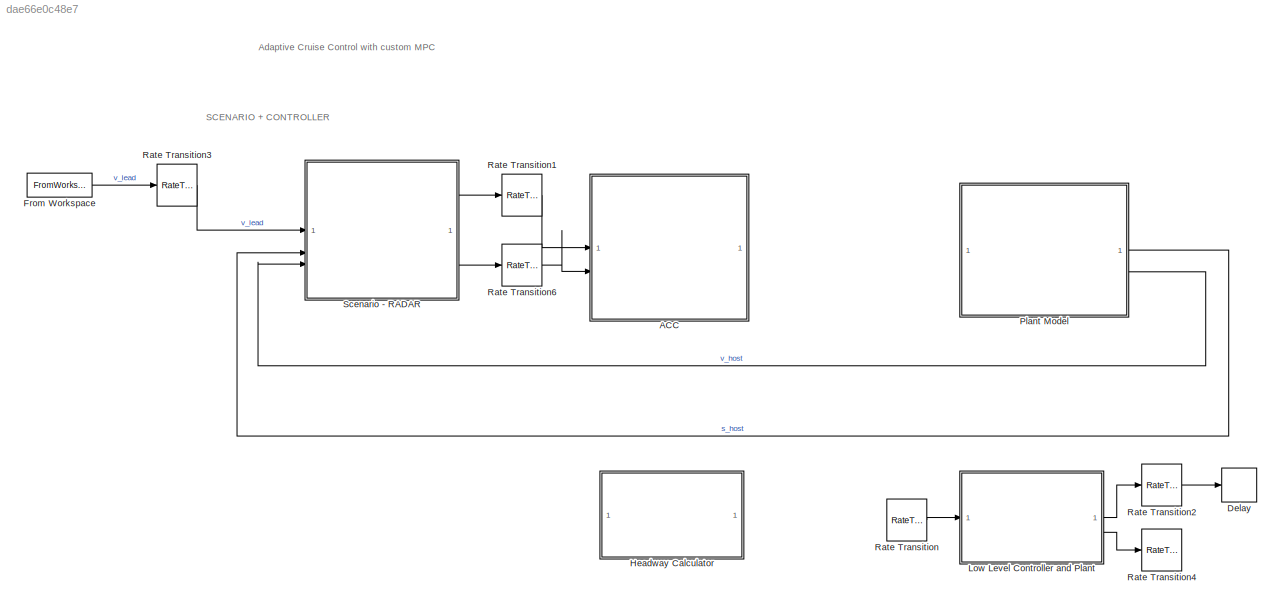
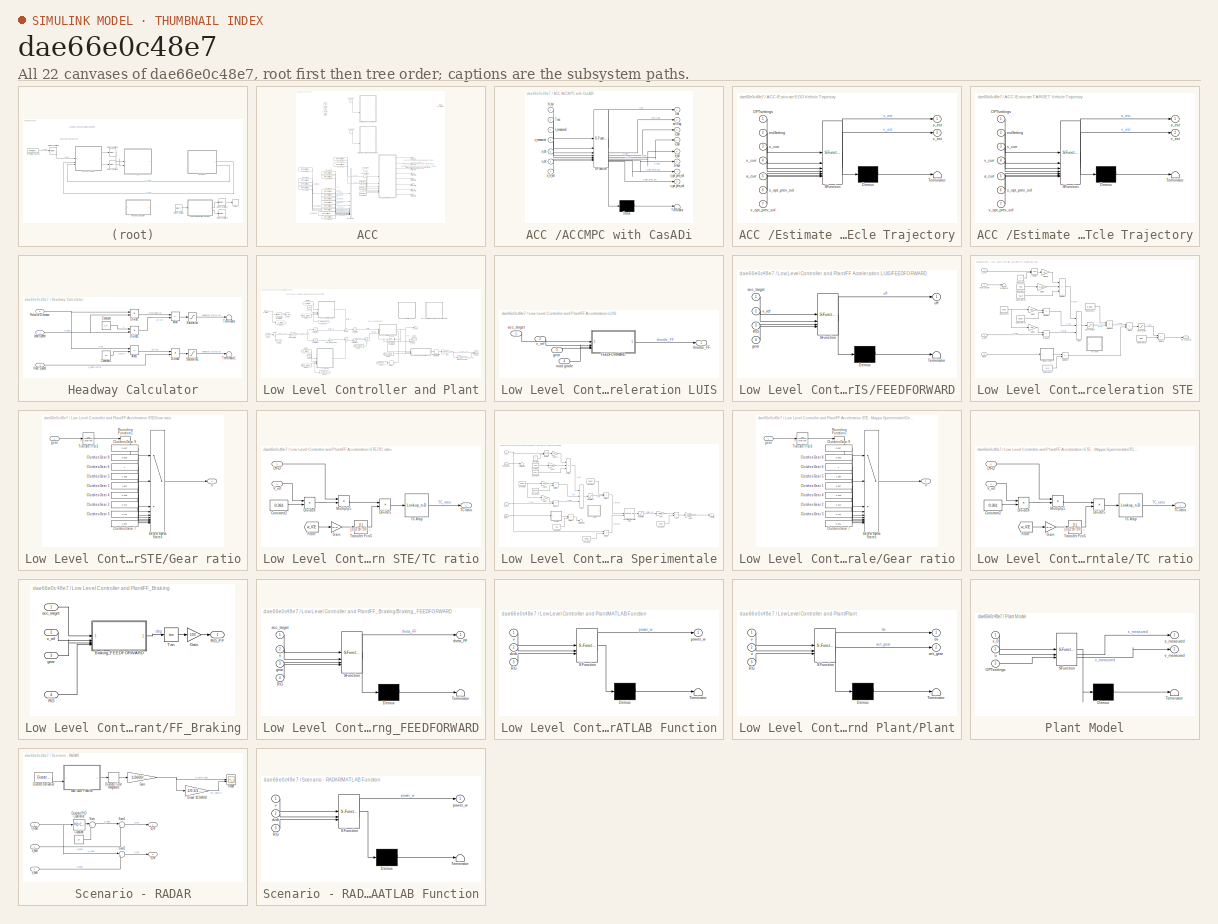
[diagram: thumbnail index - all 22 canvases of the model, root first then tree order]
MODEL slx_dae66e0c48e7
KIND model
CONFIG AbsTol = auto
CONFIG EnableMultiTasking = on
CONFIG FixedStep = 0.005
CONFIG InitFcn = load('DrivingCycles/WLTC.mat')\nload('DrivingCycles/Mappa_Throttle.mat')
CONFIG MaxStep = 0.005
CONFIG MinStep = auto
CONFIG RelTol = 1e-3
CONFIG SampleTimeConstraint = Unconstrained
CONFIG SolverName = FixedStepDiscrete
CONFIG StartTime = 0.0
CONFIG StopTime = 1800
WORKSPACE source: external: MATLAB File  (data not in archive)
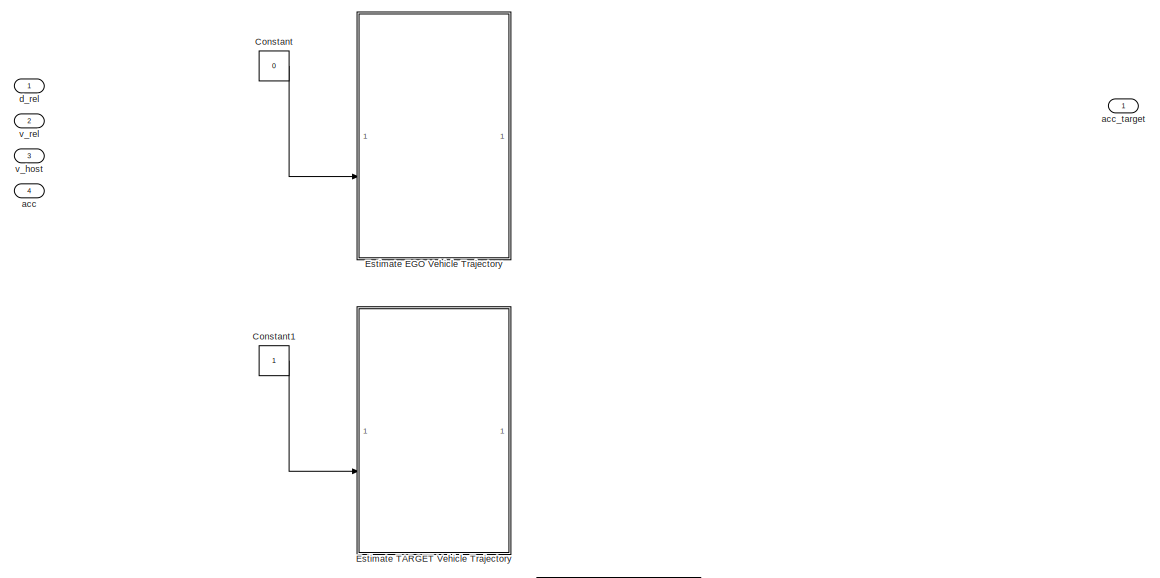
[diagram: ACC  - part 1/2, full width, top band]
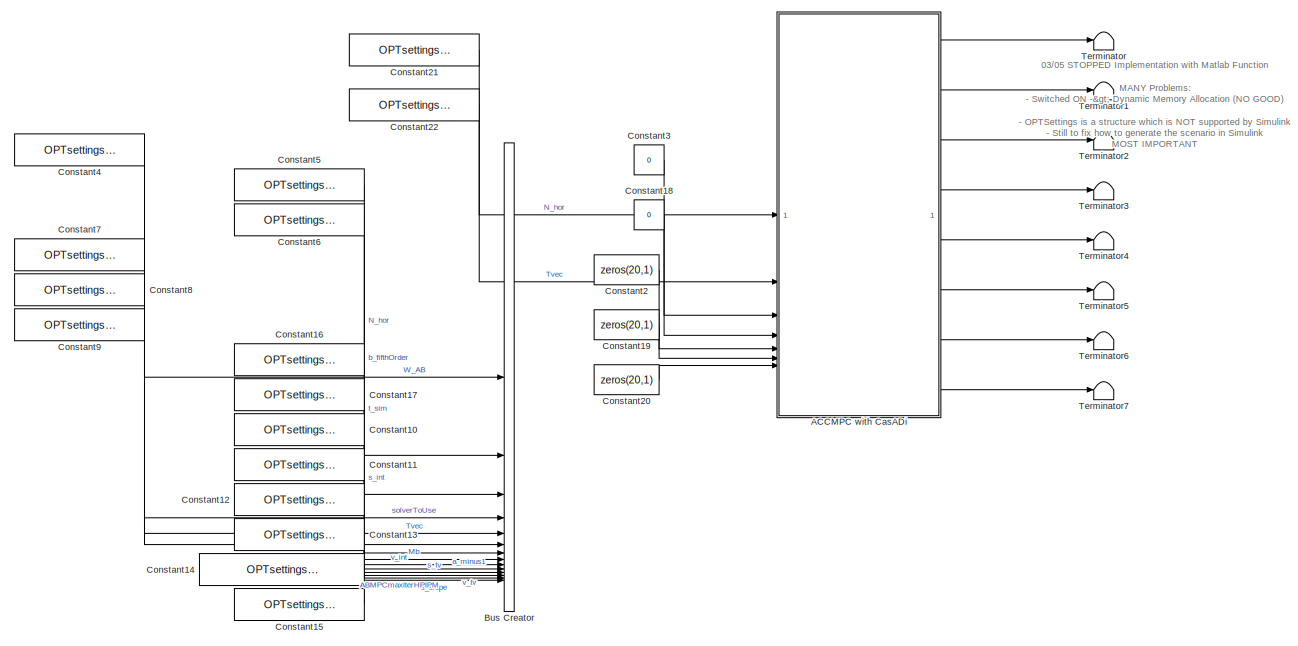
[diagram: ACC  - part 2/2, full width, bottom band]
BLOCK [SubSystem] ACC 
  Commented = on
BLOCK [SubSystem] ACC /ACCMPC with CasADi
  ErrorFcn = Stateflow.Translate.translate
  PermitHierarchicalResolution = ExplicitOnly
  SFBlockType = MATLAB Function
  TreatAsAtomicUnit = on
BLOCK [Demux] ACC /ACCMPC with CasADi/ Demux 
  Outputs = 1
BLOCK [S-Function] ACC /ACCMPC with CasADi/ SFunction 
  EnableBusSupport = on
  FunctionName = sf_sfun
  Parameters = OPTsettings,V
  PortCounts = [7 9]
  SFcnIsStateOwnerBlock = off
  SFunctionDeploymentMode = off
  Tag = Stateflow S-Function 10
BLOCK [Terminator] ACC /ACCMPC with CasADi/ Terminator 
BLOCK [Inport] ACC /ACCMPC with CasADi/N_hor
BLOCK [Outport] ACC /ACCMPC with CasADi/Slack
  Port = 6
BLOCK [Inport] ACC /ACCMPC with CasADi/Tvec
  Port = 2
BLOCK [Outport] ACC /ACCMPC with CasADi/a_opt
  Port = 5
BLOCK [Outport] ACC /ACCMPC with CasADi/exitflag
  Port = 2
BLOCK [Outport] ACC /ACCMPC with CasADi/fval
BLOCK [Inport] ACC /ACCMPC with CasADi/s_est
  Port = 5
BLOCK [Inport] ACC /ACCMPC with CasADi/s_measured
  Port = 3
BLOCK [Outport] ACC /ACCMPC with CasADi/s_opt
  Port = 3
BLOCK [Outport] ACC /ACCMPC with CasADi/s_opt_prev_sol
  Port = 7
BLOCK [Inport] ACC /ACCMPC with CasADi/s_tv_est
  Port = 7
BLOCK [Inport] ACC /ACCMPC with CasADi/v_est
  Port = 6
BLOCK [Inport] ACC /ACCMPC with CasADi/v_measured
  Port = 4
BLOCK [Outport] ACC /ACCMPC with CasADi/v_opt
  Port = 4
BLOCK [Outport] ACC /ACCMPC with CasADi/v_opt_prev_sol
  Port = 8
BLOCK [BusCreator] ACC /Bus Creator
  Commented = on
  DisplayOption = bar
  InheritFromInputs = on
  Inputs = 14
BLOCK [Constant] ACC /Constant
  Value = 0
BLOCK [Constant] ACC /Constant1
BLOCK [Constant] ACC /Constant10
  Commented = on
  Value = OPTsettings.v_init
BLOCK [Constant] ACC /Constant11
  Commented = on
  Value = OPTsettings.a_minus1
BLOCK [Constant] ACC /Constant12
  Commented = on
  OutDataTypeStr = double
  Value = OPTsettings.s_tv
  VectorParams1D = off
BLOCK [Constant] ACC /Constant13
  Commented = on
  Value = OPTsettings.v_tv
  VectorParams1D = off
BLOCK [Constant] ACC /Constant14
  Commented = on
  Value = OPTsettings.ABMPCmaxIterHPIPM
BLOCK [Constant] ACC /Constant15
  Commented = on
  Value = OPTsettings.s_slope
  VectorParams1D = off
BLOCK [Constant] ACC /Constant16
  Commented = on
  Value = OPTsettings.t_sim
BLOCK [Constant] ACC /Constant17
  Commented = on
  Value = OPTsettings.s_init
BLOCK [Constant] ACC /Constant18
  Value = 0
BLOCK [Constant] ACC /Constant19
  Value = zeros(20,1)
BLOCK [Constant] ACC /Constant2
  Value = zeros(20,1)
BLOCK [Constant] ACC /Constant20
  Value = zeros(20,1)
BLOCK [Constant] ACC /Constant21
  Value = OPTsettings.N_hor
BLOCK [Constant] ACC /Constant22
  Value = OPTsettings.Tvec
  VectorParams1D = off
BLOCK [Constant] ACC /Constant3
  Value = 0
BLOCK [Constant] ACC /Constant4
  Commented = on
  Value = OPTsettings.W_AB
  VectorParams1D = off
BLOCK [Constant] ACC /Constant5
  Commented = on
  Value = OPTsettings.N_hor
BLOCK [Constant] ACC /Constant6
  Commented = on
  Value = OPTsettings.b_fifthOrder
  VectorParams1D = off
BLOCK [Constant] ACC /Constant7
  Commented = on
  Value = OPTsettings.solverToUse
BLOCK [Constant] ACC /Constant8
  Commented = on
  Value = OPTsettings.Tvec
  VectorParams1D = off
BLOCK [Constant] ACC /Constant9
  Commented = on
  Value = OPTsettings.Mb
  VectorParams1D = off
BLOCK [SubSystem] ACC /Estimate EGO Vehicle Trajectory
  ErrorFcn = Stateflow.Translate.translate
  PermitHierarchicalResolution = ExplicitOnly
  SFBlockType = MATLAB Function
  TreatAsAtomicUnit = on
BLOCK [Demux] ACC /Estimate EGO Vehicle Trajectory/ Demux 
  Outputs = 1
BLOCK [S-Function] ACC /Estimate EGO Vehicle Trajectory/ SFunction 
  EnableBusSupport = off
  FunctionName = sf_sfun
  PortCounts = [7 3]
  SFcnIsStateOwnerBlock = off
  SFunctionDeploymentMode = off
  Tag = Stateflow S-Function 8
BLOCK [Terminator] ACC /Estimate EGO Vehicle Trajectory/ Terminator 
BLOCK [Inport] ACC /Estimate EGO Vehicle Trajectory/OPTsettings
BLOCK [Inport] ACC /Estimate EGO Vehicle Trajectory/a_curr
  Port = 5
BLOCK [Inport] ACC /Estimate EGO Vehicle Trajectory/estSetting
  Port = 2
BLOCK [Inport] ACC /Estimate EGO Vehicle Trajectory/s_curr
  Port = 3
BLOCK [Outport] ACC /Estimate EGO Vehicle Trajectory/s_est
BLOCK [Inport] ACC /Estimate EGO Vehicle Trajectory/s_opt_prev_sol
  Port = 6
BLOCK [Inport] ACC /Estimate EGO Vehicle Trajectory/v_curr
  Port = 4
BLOCK [Outport] ACC /Estimate EGO Vehicle Trajectory/v_est
  Port = 2
BLOCK [Inport] ACC /Estimate EGO Vehicle Trajectory/v_opt_prev_sol
  Port = 7
BLOCK [SubSystem] ACC /Estimate TARGET Vehicle Trajectory
  ErrorFcn = Stateflow.Translate.translate
  PermitHierarchicalResolution = ExplicitOnly
  SFBlockType = MATLAB Function
  TreatAsAtomicUnit = on
BLOCK [Demux] ACC /Estimate TARGET Vehicle Trajectory/ Demux 
  Outputs = 1
BLOCK [S-Function] ACC /Estimate TARGET Vehicle Trajectory/ SFunction 
  EnableBusSupport = off
  FunctionName = sf_sfun
  PortCounts = [7 3]
  SFcnIsStateOwnerBlock = off
  SFunctionDeploymentMode = off
  Tag = Stateflow S-Function 9
BLOCK [Terminator] ACC /Estimate TARGET Vehicle Trajectory/ Terminator 
BLOCK [Inport] ACC /Estimate TARGET Vehicle Trajectory/OPTsettings
BLOCK [Inport] ACC /Estimate TARGET Vehicle Trajectory/a_curr
  Port = 5
BLOCK [Inport] ACC /Estimate TARGET Vehicle Trajectory/estSetting
  Port = 2
BLOCK [Inport] ACC /Estimate TARGET Vehicle Trajectory/s_curr
  Port = 3
BLOCK [Outport] ACC /Estimate TARGET Vehicle Trajectory/s_est
BLOCK [Inport] ACC /Estimate TARGET Vehicle Trajectory/s_opt_prev_sol
  Port = 6
BLOCK [Inport] ACC /Estimate TARGET Vehicle Trajectory/v_curr
  Port = 4
BLOCK [Outport] ACC /Estimate TARGET Vehicle Trajectory/v_est
  Port = 2
BLOCK [Inport] ACC /Estimate TARGET Vehicle Trajectory/v_opt_prev_sol
  Port = 7
BLOCK [Terminator] ACC /Terminator
BLOCK [Terminator] ACC /Terminator1
BLOCK [Terminator] ACC /Terminator2
BLOCK [Terminator] ACC /Terminator3
BLOCK [Terminator] ACC /Terminator4
BLOCK [Terminator] ACC /Terminator5
BLOCK [Terminator] ACC /Terminator6
BLOCK [Terminator] ACC /Terminator7
BLOCK [Inport] ACC /acc
  Port = 4
BLOCK [Outport] ACC /acc_target 
BLOCK [Inport] ACC /d_rel
BLOCK [Inport] ACC /v_host
  Port = 3
BLOCK [Inport] ACC /v_rel
  Port = 2
BLOCK [Delay] Delay
  Commented = on
  DelayLength = 1
  InputPortMap = u0
BLOCK [FromWorkspace] From Workspace
  Commented = on
  OutDataTypeStr = double
  SampleTime = 1
  VariableName = [T_z, V_z]
BLOCK [SubSystem] Headway Calculator
  Commented = on
BLOCK [Sum] Headway Calculator/Add
  IconShape = rectangular
  Inputs = +-
BLOCK [Sum] Headway Calculator/Add1
  IconShape = rectangular
  Inputs = +-
BLOCK [Constant] Headway Calculator/Constant
  Value = 2.5
BLOCK [Constant] Headway Calculator/Constant1
  Value = 10
BLOCK [Product] Headway Calculator/Divide
  Inputs = */
BLOCK [Product] Headway Calculator/Divide1
  Inputs = */
BLOCK [Product] Headway Calculator/Divide2
  Inputs = */
BLOCK [Inport] Headway Calculator/Host Speed
  Port = 2
BLOCK [Inport] Headway Calculator/Lead Speed
BLOCK [Inport] Headway Calculator/Relative Distance
  Port = 3
BLOCK [Saturate] Headway Calculator/Saturation
  LowerLimit = 0
  UpperLimit = 40
BLOCK [Saturate] Headway Calculator/Saturation1
  LowerLimit = 0
  UpperLimit = 40
BLOCK [Terminator] Headway Calculator/Terminator
BLOCK [Terminator] Headway Calculator/Terminator1
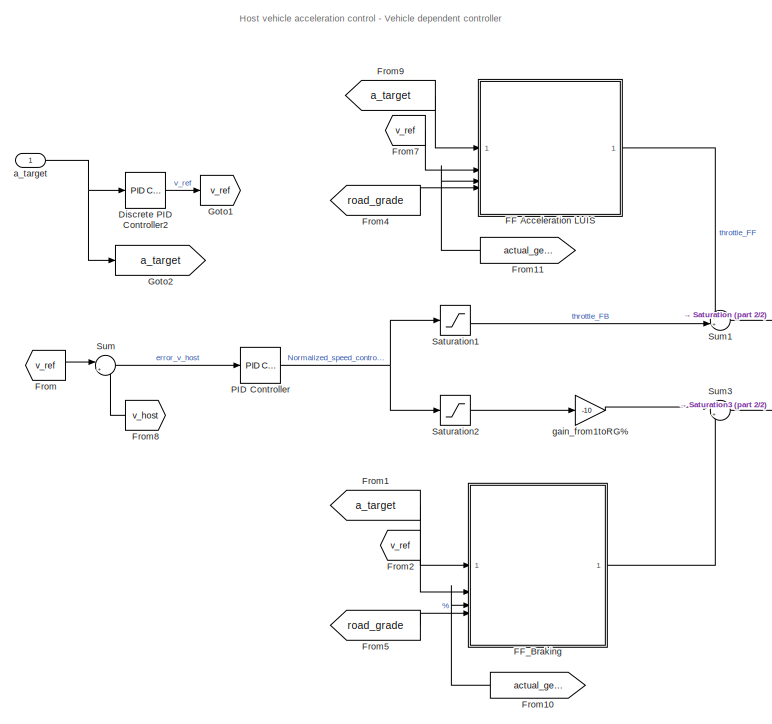
[diagram: Low Level Controller and Plant - part 1/2, left side, full height]
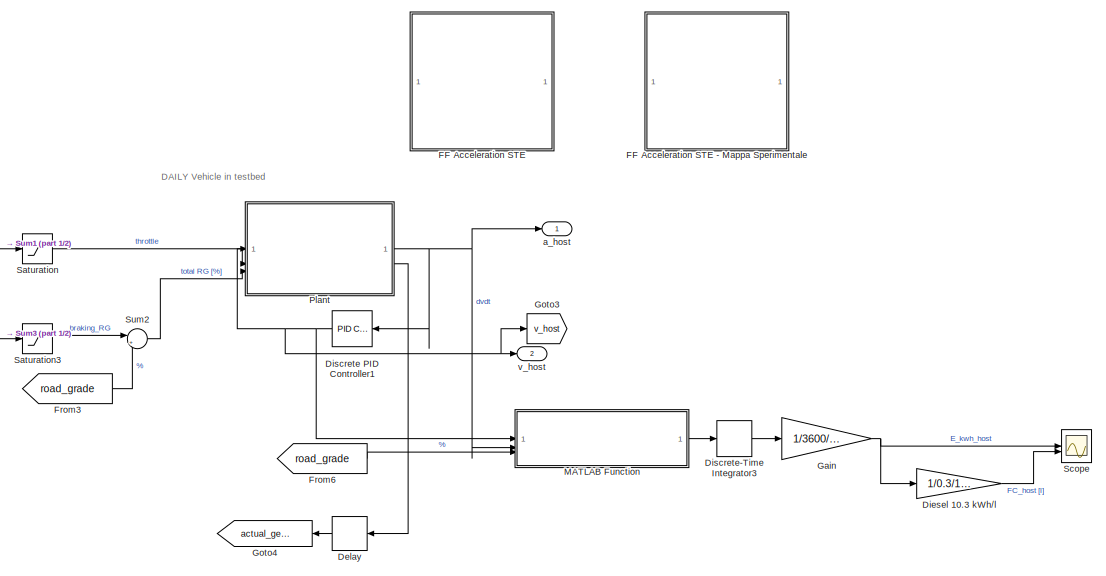
[diagram: Low Level Controller and Plant - part 2/2, right side, full height]
BLOCK [SubSystem] Low Level Controller and Plant
  Commented = on
BLOCK [Delay] Low Level Controller and Plant/Delay
  DelayLength = 1
  InitialCondition = 1
  InputPortMap = u0
  NameLocation = top
BLOCK [Gain] Low Level Controller and Plant/Diesel 10.3 kWh//l
  Gain = 1/0.3/10.3
BLOCK [Reference] Low Level Controller and Plant/Discrete PID Controller1  REF=slpidlib/PID Controller
  NameLocation = top
  SourceBlock = slpidlib/PID Controller
  SourceType = PID 1dof
BLOCK [Reference] Low Level Controller and Plant/Discrete PID Controller2  REF=slpidlib/PID Controller
  SourceBlock = slpidlib/PID Controller
  SourceType = PID 1dof
BLOCK [DiscreteIntegrator] Low Level Controller and Plant/Discrete-Time Integrator3
  ICPrevOutput = DiscIntNeverNeededParam
  ICPrevScaledInput = DiscIntNeverNeededParam
  InitialConditionSetting = Auto
  SampleTime = -1
BLOCK [SubSystem] Low Level Controller and Plant/FF Acceleration LUIS
BLOCK [SubSystem] Low Level Controller and Plant/FF Acceleration LUIS/FEEDFORWARD
  ErrorFcn = Stateflow.Translate.translate
  PermitHierarchicalResolution = ExplicitOnly
  SFBlockType = MATLAB Function
  TreatAsAtomicUnit = on
BLOCK [Demux] Low Level Controller and Plant/FF Acceleration LUIS/FEEDFORWARD/ Demux 
  Outputs = 1
BLOCK [S-Function] Low Level Controller and Plant/FF Acceleration LUIS/FEEDFORWARD/ SFunction 
  EnableBusSupport = off
  FunctionName = sf_sfun
  PortCounts = [4 2]
  SFcnIsStateOwnerBlock = off
  SFunctionDeploymentMode = off
  Tag = Stateflow S-Function 3
BLOCK [Terminator] Low Level Controller and Plant/FF Acceleration LUIS/FEEDFORWARD/ Terminator 
BLOCK [Inport] Low Level Controller and Plant/FF Acceleration LUIS/FEEDFORWARD/RG
  Port = 3
BLOCK [Inport] Low Level Controller and Plant/FF Acceleration LUIS/FEEDFORWARD/acc_target
BLOCK [Inport] Low Level Controller and Plant/FF Acceleration LUIS/FEEDFORWARD/gear
  Port = 4
BLOCK [Outport] Low Level Controller and Plant/FF Acceleration LUIS/FEEDFORWARD/uff
BLOCK [Inport] Low Level Controller and Plant/FF Acceleration LUIS/FEEDFORWARD/v_ref
  Port = 2
BLOCK [Inport] Low Level Controller and Plant/FF Acceleration LUIS/acc_target
BLOCK [Inport] Low Level Controller and Plant/FF Acceleration LUIS/gear
  NameLocation = top
  Port = 3
BLOCK [Inport] Low Level Controller and Plant/FF Acceleration LUIS/road grade
  NameLocation = top
  Port = 4
BLOCK [Outport] Low Level Controller and Plant/FF Acceleration LUIS/throttle_FF
BLOCK [Inport] Low Level Controller and Plant/FF Acceleration LUIS/v_ref
  Port = 2
BLOCK [SubSystem] Low Level Controller and Plant/FF Acceleration STE
  Commented = on
BLOCK [SubSystem] Low Level Controller and Plant/FF Acceleration STE - Mappa Sperimentale
  Commented = on
BLOCK [Sum] Low Level Controller and Plant/FF Acceleration STE - Mappa Sperimentale/Add
  IconShape = rectangular
  Inputs = +-
BLOCK [Sum] Low Level Controller and Plant/FF Acceleration STE - Mappa Sperimentale/Add2
  IconShape = rectangular
  Inputs = +++
BLOCK [Constant] Low Level Controller and Plant/FF Acceleration STE - Mappa Sperimentale/Constant1
  Value = 0.361
BLOCK [Constant] Low Level Controller and Plant/FF Acceleration STE - Mappa Sperimentale/Constant10
  Value = 0.0107
BLOCK [Constant] Low Level Controller and Plant/FF Acceleration STE - Mappa Sperimentale/Constant11
  Value = 0.46
BLOCK [Constant] Low Level Controller and Plant/FF Acceleration STE - Mappa Sperimentale/Constant12
  Value = 4.614
BLOCK [Constant] Low Level Controller and Plant/FF Acceleration STE - Mappa Sperimentale/Constant2
  Value = 0.361
BLOCK [Constant] Low Level Controller and Plant/FF Acceleration STE - Mappa Sperimentale/Constant3
  Value = 3.6
BLOCK [Constant] Low Level Controller and Plant/FF Acceleration STE - Mappa Sperimentale/Constant4
  Value = 0.18
BLOCK [Constant] Low Level Controller and Plant/FF Acceleration STE - Mappa Sperimentale/Constant7
  Value = 2
BLOCK [Constant] Low Level Controller and Plant/FF Acceleration STE - Mappa Sperimentale/Constant9
  Value = 3283
BLOCK [Product] Low Level Controller and Plant/FF Acceleration STE - Mappa Sperimentale/Divide
  Inputs = */
BLOCK [Lookup_n-D] Low Level Controller and Plant/FF Acceleration STE - Mappa Sperimentale/Experimental Throttle Map
  BreakpointsForDimension1 = wheel_torque_Nm
  BreakpointsForDimension2 = wheel_speed_radps
  InputPortMap = u0,u1
  InternalRulePriority = Speed
  RndMeth = Simplest
  Table = throttle_pedal
BLOCK [Outport] Low Level Controller and Plant/FF Acceleration STE - Mappa Sperimentale/FF throttle
BLOCK [Gain] Low Level Controller and Plant/FF Acceleration STE - Mappa Sperimentale/Gain
  Gain = 1/100
BLOCK [Gain] Low Level Controller and Plant/FF Acceleration STE - Mappa Sperimentale/Gain1
BLOCK [Gain] Low Level Controller and Plant/FF Acceleration STE - Mappa Sperimentale/Gain16
  Gain = 1/2
BLOCK [Gain] Low Level Controller and Plant/FF Acceleration STE - Mappa Sperimentale/Gain2
  Gain = 9.81
BLOCK [Gain] Low Level Controller and Plant/FF Acceleration STE - Mappa Sperimentale/Gain3
  Gain = 1.225
BLOCK [Gain] Low Level Controller and Plant/FF Acceleration STE - Mappa Sperimentale/Gain4
  Gain = 100/82
BLOCK [SubSystem] Low Level Controller and Plant/FF Acceleration STE - Mappa Sperimentale/Gear ratio
BLOCK [Constant] Low Level Controller and Plant/FF Acceleration STE - Mappa Sperimentale/Gear ratio/Clutches Gear 1
  SampleTime = 0
  Value = 1.667
BLOCK [Constant] Low Level Controller and Plant/FF Acceleration STE - Mappa Sperimentale/Gear ratio/Clutches Gear 2
  SampleTime = 0
  Value = 3.314
BLOCK [Constant] Low Level Controller and Plant/FF Acceleration STE - Mappa Sperimentale/Gear ratio/Clutches Gear 3
  SampleTime = 0
  Value = 4.714
BLOCK [Constant] Low Level Controller and Plant/FF Acceleration STE - Mappa Sperimentale/Gear ratio/Clutches Gear 4
  SampleTime = 0
  Value = 2.106
BLOCK [Constant] Low Level Controller and Plant/FF Acceleration STE - Mappa Sperimentale/Gear ratio/Clutches Gear 5
  SampleTime = 0
  Value = 1.285
BLOCK [Constant] Low Level Controller and Plant/FF Acceleration STE - Mappa Sperimentale/Gear ratio/Clutches Gear 6
  SampleTime = 0
BLOCK [Constant] Low Level Controller and Plant/FF Acceleration STE - Mappa Sperimentale/Gear ratio/Clutches Gear 7
  SampleTime = 0
  Value = 0.001
BLOCK [Constant] Low Level Controller and Plant/FF Acceleration STE - Mappa Sperimentale/Gear ratio/Clutches Gear 8
  SampleTime = 0
  Value = 0.839
BLOCK [Constant] Low Level Controller and Plant/FF Acceleration STE - Mappa Sperimentale/Gear ratio/Clutches Gear 9
  SampleTime = 0
  Value = 0.667
BLOCK [Rounding] Low Level Controller and Plant/FF Acceleration STE - Mappa Sperimentale/Gear ratio/Rounding Function1
  Operator = round
BLOCK [MultiPortSwitch] Low Level Controller and Plant/FF Acceleration STE - Mappa Sperimentale/Gear ratio/Select Synch States
  DataPortIndices = {8,7,6,5,4,3,2,1,0}
  DataPortOrder = Specify indices
  DiagnosticForDefault = None
  InputSameDT = off
  SaturateOnIntegerOverflow = off
BLOCK [TransferFcn] Low Level Controller and Plant/FF Acceleration STE - Mappa Sperimentale/Gear ratio/Transfer Fcn3
  Denominator = [1/(2*pi*20) 1]
BLOCK [Outport] Low Level Controller and Plant/FF Acceleration STE - Mappa Sperimentale/Gear ratio/U
  VectorParamsAs1DForOutWhenUnconnected = off
BLOCK [Inport] Low Level Controller and Plant/FF Acceleration STE - Mappa Sperimentale/Gear ratio/gear
BLOCK [Product] Low Level Controller and Plant/FF Acceleration STE - Mappa Sperimentale/Multiply1
  Inputs = 3
BLOCK [Product] Low Level Controller and Plant/FF Acceleration STE - Mappa Sperimentale/Multiply2
BLOCK [Product] Low Level Controller and Plant/FF Acceleration STE - Mappa Sperimentale/Multiply4
BLOCK [Product] Low Level Controller and Plant/FF Acceleration STE - Mappa Sperimentale/Multiply7
BLOCK [Math] Low Level Controller and Plant/FF Acceleration STE - Mappa Sperimentale/Power
  Operator = pow
BLOCK [Product] Low Level Controller and Plant/FF Acceleration STE - Mappa Sperimentale/Product
BLOCK [Saturate] Low Level Controller and Plant/FF Acceleration STE - Mappa Sperimentale/Saturation
  LowerLimit = 0
  UpperLimit = 100
BLOCK [Saturate] Low Level Controller and Plant/FF Acceleration STE - Mappa Sperimentale/Saturation1
  LowerLimit = 0
  UpperLimit = inf
BLOCK [SubSystem] Low Level Controller and Plant/FF Acceleration STE - Mappa Sperimentale/TC ratio
  Commented = on
BLOCK [Constant] Low Level Controller and Plant/FF Acceleration STE - Mappa Sperimentale/TC ratio/Constant2
  Value = 0.361
BLOCK [Product] Low Level Controller and Plant/FF Acceleration STE - Mappa Sperimentale/TC ratio/Divide4
  Inputs = */
BLOCK [Product] Low Level Controller and Plant/FF Acceleration STE - Mappa Sperimentale/TC ratio/Divide5
  Inputs = */
BLOCK [From] Low Level Controller and Plant/FF Acceleration STE - Mappa Sperimentale/TC ratio/From
  GotoTag = w_ICE
  TagVisibility = global
BLOCK [Gain] Low Level Controller and Plant/FF Acceleration STE - Mappa Sperimentale/TC ratio/Gain
  Gain = pi/30
BLOCK [Product] Low Level Controller and Plant/FF Acceleration STE - Mappa Sperimentale/TC ratio/Multiply5
BLOCK [Lookup_n-D] Low Level Controller and Plant/FF Acceleration STE - Mappa Sperimentale/TC ratio/TC Map
  BreakpointsForDimension1 = [0 0.50 0.60 0.70 0.80 0.87 0.92 0.94 0.96 0.97]
  InputPortMap = u0
  InternalRulePriority = Speed
  NumberOfTableDimensions = 1
  RndMeth = Simplest
  Table = [1.911 1.413 1.303 1.201 1.109 1.053 1.018 1.006 0.994 0.989]
BLOCK [Outport] Low Level Controller and Plant/FF Acceleration STE - Mappa Sperimentale/TC ratio/TC ratio
BLOCK [TransferFcn] Low Level Controller and Plant/FF Acceleration STE - Mappa Sperimentale/TC ratio/Transfer Fcn5
  Denominator = [1/(2*pi*20) 1]
BLOCK [Inport] Low Level Controller and Plant/FF Acceleration STE - Mappa Sperimentale/TC ratio/U*FD
  Port = 2
BLOCK [Inport] Low Level Controller and Plant/FF Acceleration STE - Mappa Sperimentale/TC ratio/V_ref
BLOCK [Terminator] Low Level Controller and Plant/FF Acceleration STE - Mappa Sperimentale/Terminator
BLOCK [Terminator] Low Level Controller and Plant/FF Acceleration STE - Mappa Sperimentale/Terminator1
BLOCK [Inport] Low Level Controller and Plant/FF Acceleration STE - Mappa Sperimentale/V_ref
  Port = 2
BLOCK [Inport] Low Level Controller and Plant/FF Acceleration STE - Mappa Sperimentale/a_des
BLOCK [Inport] Low Level Controller and Plant/FF Acceleration STE - Mappa Sperimentale/gear
  Port = 3
BLOCK [Inport] Low Level Controller and Plant/FF Acceleration STE - Mappa Sperimentale/road grade
  Port = 4
BLOCK [Sum] Low Level Controller and Plant/FF Acceleration STE/Add2
  IconShape = rectangular
  Inputs = +++
BLOCK [Constant] Low Level Controller and Plant/FF Acceleration STE/Constant1
  Value = 0.361
BLOCK [Constant] Low Level Controller and Plant/FF Acceleration STE/Constant10
  Value = 0.0107
BLOCK [Constant] Low Level Controller and Plant/FF Acceleration STE/Constant11
  Value = 0.46
BLOCK [Constant] Low Level Controller and Plant/FF Acceleration STE/Constant12
  Value = 4.614
BLOCK [Constant] Low Level Controller and Plant/FF Acceleration STE/Constant3
  Value = 3.6
BLOCK [Constant] Low Level Controller and Plant/FF Acceleration STE/Constant5
  Value = 390
BLOCK [Constant] Low Level Controller and Plant/FF Acceleration STE/Constant7
  Value = 2
BLOCK [Constant] Low Level Controller and Plant/FF Acceleration STE/Constant9
  Value = 3283
BLOCK [Product] Low Level Controller and Plant/FF Acceleration STE/Divide
  Inputs = */
BLOCK [Product] Low Level Controller and Plant/FF Acceleration STE/Divide3
  Inputs = */
BLOCK [Outport] Low Level Controller and Plant/FF Acceleration STE/FF throttle
BLOCK [Gain] Low Level Controller and Plant/FF Acceleration STE/Gain1
  Gain = 1.20
BLOCK [Gain] Low Level Controller and Plant/FF Acceleration STE/Gain16
  Gain = 1/2
BLOCK [Gain] Low Level Controller and Plant/FF Acceleration STE/Gain2
  Gain = 9.81
BLOCK [Gain] Low Level Controller and Plant/FF Acceleration STE/Gain3
  Gain = 1.225
BLOCK [SubSystem] Low Level Controller and Plant/FF Acceleration STE/Gear ratio
BLOCK [Constant] Low Level Controller and Plant/FF Acceleration STE/Gear ratio/Clutches Gear 1
  SampleTime = 0
  Value = 1.667
BLOCK [Constant] Low Level Controller and Plant/FF Acceleration STE/Gear ratio/Clutches Gear 2
  SampleTime = 0
  Value = 3.314
BLOCK [Constant] Low Level Controller and Plant/FF Acceleration STE/Gear ratio/Clutches Gear 3
  SampleTime = 0
  Value = 4.714
BLOCK [Constant] Low Level Controller and Plant/FF Acceleration STE/Gear ratio/Clutches Gear 4
  SampleTime = 0
  Value = 2.106
BLOCK [Constant] Low Level Controller and Plant/FF Acceleration STE/Gear ratio/Clutches Gear 5
  SampleTime = 0
  Value = 1.285
BLOCK [Constant] Low Level Controller and Plant/FF Acceleration STE/Gear ratio/Clutches Gear 6
  SampleTime = 0
BLOCK [Constant] Low Level Controller and Plant/FF Acceleration STE/Gear ratio/Clutches Gear 7
  SampleTime = 0
  Value = 0.001
BLOCK [Constant] Low Level Controller and Plant/FF Acceleration STE/Gear ratio/Clutches Gear 8
  SampleTime = 0
  Value = 0.839
BLOCK [Constant] Low Level Controller and Plant/FF Acceleration STE/Gear ratio/Clutches Gear 9
  SampleTime = 0
  Value = 0.667
BLOCK [Rounding] Low Level Controller and Plant/FF Acceleration STE/Gear ratio/Rounding Function1
  Operator = round
BLOCK [MultiPortSwitch] Low Level Controller and Plant/FF Acceleration STE/Gear ratio/Select Synch States
  DataPortIndices = {8,7,6,5,4,3,2,1,0}
  DataPortOrder = Specify indices
  DiagnosticForDefault = None
  InputSameDT = off
  SaturateOnIntegerOverflow = off
BLOCK [TransferFcn] Low Level Controller and Plant/FF Acceleration STE/Gear ratio/Transfer Fcn3
  Denominator = [1/(2*pi*20) 1]
BLOCK [Outport] Low Level Controller and Plant/FF Acceleration STE/Gear ratio/U
  VectorParamsAs1DForOutWhenUnconnected = off
BLOCK [Inport] Low Level Controller and Plant/FF Acceleration STE/Gear ratio/gear
BLOCK [Product] Low Level Controller and Plant/FF Acceleration STE/Multiply1
  Inputs = 3
BLOCK [Product] Low Level Controller and Plant/FF Acceleration STE/Multiply2
BLOCK [Product] Low Level Controller and Plant/FF Acceleration STE/Multiply4
BLOCK [Product] Low Level Controller and Plant/FF Acceleration STE/Multiply7
BLOCK [Math] Low Level Controller and Plant/FF Acceleration STE/Power
  Operator = pow
BLOCK [Product] Low Level Controller and Plant/FF Acceleration STE/Product
BLOCK [Saturate] Low Level Controller and Plant/FF Acceleration STE/Saturation
  LowerLimit = 0
  UpperLimit = 390
BLOCK [Saturate] Low Level Controller and Plant/FF Acceleration STE/Saturation1
  LowerLimit = 0
  UpperLimit = inf
BLOCK [SubSystem] Low Level Controller and Plant/FF Acceleration STE/TC ratio
  Commented = on
BLOCK [Constant] Low Level Controller and Plant/FF Acceleration STE/TC ratio/Constant2
  Value = 0.361
BLOCK [Product] Low Level Controller and Plant/FF Acceleration STE/TC ratio/Divide4
  Inputs = */
BLOCK [Product] Low Level Controller and Plant/FF Acceleration STE/TC ratio/Divide5
  Inputs = */
BLOCK [From] Low Level Controller and Plant/FF Acceleration STE/TC ratio/From
  GotoTag = w_ICE
  TagVisibility = global
BLOCK [Gain] Low Level Controller and Plant/FF Acceleration STE/TC ratio/Gain
  Gain = pi/30
BLOCK [Product] Low Level Controller and Plant/FF Acceleration STE/TC ratio/Multiply5
BLOCK [Lookup_n-D] Low Level Controller and Plant/FF Acceleration STE/TC ratio/TC Map
  BreakpointsForDimension1 = [0 0.50 0.60 0.70 0.80 0.87 0.92 0.94 0.96 0.97]
  InputPortMap = u0
  InternalRulePriority = Speed
  NumberOfTableDimensions = 1
  RndMeth = Simplest
  Table = [1.911 1.413 1.303 1.201 1.109 1.053 1.018 1.006 0.994 0.989]
BLOCK [Outport] Low Level Controller and Plant/FF Acceleration STE/TC ratio/TC ratio
BLOCK [TransferFcn] Low Level Controller and Plant/FF Acceleration STE/TC ratio/Transfer Fcn5
  Denominator = [1/(2*pi*20) 1]
BLOCK [Inport] Low Level Controller and Plant/FF Acceleration STE/TC ratio/U*FD
  Port = 2
BLOCK [Inport] Low Level Controller and Plant/FF Acceleration STE/TC ratio/V_ref
BLOCK [Terminator] Low Level Controller and Plant/FF Acceleration STE/Terminator
BLOCK [Inport] Low Level Controller and Plant/FF Acceleration STE/V_ref
  Port = 2
BLOCK [Inport] Low Level Controller and Plant/FF Acceleration STE/a_des
BLOCK [Inport] Low Level Controller and Plant/FF Acceleration STE/gear
  Port = 3
BLOCK [Inport] Low Level Controller and Plant/FF Acceleration STE/road grade
  Port = 4
BLOCK [SubSystem] Low Level Controller and Plant/FF_Braking
BLOCK [SubSystem] Low Level Controller and Plant/FF_Braking/Braking_FEEDFORWARD
  ErrorFcn = Stateflow.Translate.translate
  PermitHierarchicalResolution = ExplicitOnly
  SFBlockType = MATLAB Function
  TreatAsAtomicUnit = on
BLOCK [Demux] Low Level Controller and Plant/FF_Braking/Braking_FEEDFORWARD/ Demux 
  Outputs = 1
BLOCK [S-Function] Low Level Controller and Plant/FF_Braking/Braking_FEEDFORWARD/ SFunction 
  EnableBusSupport = off
  FunctionName = sf_sfun
  PortCounts = [4 2]
  SFcnIsStateOwnerBlock = off
  SFunctionDeploymentMode = off
  Tag = Stateflow S-Function 4
BLOCK [Terminator] Low Level Controller and Plant/FF_Braking/Braking_FEEDFORWARD/ Terminator 
BLOCK [Inport] Low Level Controller and Plant/FF_Braking/Braking_FEEDFORWARD/RG
  Port = 4
BLOCK [Inport] Low Level Controller and Plant/FF_Braking/Braking_FEEDFORWARD/acc_target
BLOCK [Inport] Low Level Controller and Plant/FF_Braking/Braking_FEEDFORWARD/gear
  Port = 3
BLOCK [Outport] Low Level Controller and Plant/FF_Braking/Braking_FEEDFORWARD/theta_FF
BLOCK [Inport] Low Level Controller and Plant/FF_Braking/Braking_FEEDFORWARD/v
  Port = 2
BLOCK [Gain] Low Level Controller and Plant/FF_Braking/Gain
  Gain = 100
BLOCK [Inport] Low Level Controller and Plant/FF_Braking/RG
  Port = 4
BLOCK [Outport] Low Level Controller and Plant/FF_Braking/RG_FF
BLOCK [Trigonometry] Low Level Controller and Plant/FF_Braking/Tan
  Operator = tan
BLOCK [Inport] Low Level Controller and Plant/FF_Braking/acc_target
BLOCK [Inport] Low Level Controller and Plant/FF_Braking/gear
  NameLocation = top
  Port = 3
BLOCK [Inport] Low Level Controller and Plant/FF_Braking/v_ref
  Port = 2
BLOCK [From] Low Level Controller and Plant/From
  GotoTag = v_ref
BLOCK [From] Low Level Controller and Plant/From1
  GotoTag = a_target
BLOCK [From] Low Level Controller and Plant/From10
  GotoTag = actual_gear
BLOCK [From] Low Level Controller and Plant/From11
  GotoTag = actual_gear
BLOCK [From] Low Level Controller and Plant/From2
  GotoTag = v_ref
BLOCK [From] Low Level Controller and Plant/From3
  GotoTag = road_grade
  TagVisibility = global
BLOCK [From] Low Level Controller and Plant/From4
  GotoTag = road_grade
  TagVisibility = global
BLOCK [From] Low Level Controller and Plant/From5
  GotoTag = road_grade
  TagVisibility = global
BLOCK [From] Low Level Controller and Plant/From6
  GotoTag = road_grade
  TagVisibility = global
BLOCK [From] Low Level Controller and Plant/From7
  GotoTag = v_ref
BLOCK [From] Low Level Controller and Plant/From8
  GotoTag = v_host
  NameLocation = top
BLOCK [From] Low Level Controller and Plant/From9
  GotoTag = a_target
BLOCK [Gain] Low Level Controller and Plant/Gain
  Gain = 1/3600/1000
BLOCK [Goto] Low Level Controller and Plant/Goto1
  GotoTag = v_ref
BLOCK [Goto] Low Level Controller and Plant/Goto2
  GotoTag = a_target
BLOCK [Goto] Low Level Controller and Plant/Goto3
  GotoTag = v_host
BLOCK [Goto] Low Level Controller and Plant/Goto4
  GotoTag = actual_gear
  NameLocation = top
BLOCK [SubSystem] Low Level Controller and Plant/MATLAB Function
  ErrorFcn = Stateflow.Translate.translate
  PermitHierarchicalResolution = ExplicitOnly
  SFBlockType = MATLAB Function
  TreatAsAtomicUnit = on
BLOCK [Demux] Low Level Controller and Plant/MATLAB Function/ Demux 
  Outputs = 1
BLOCK [S-Function] Low Level Controller and Plant/MATLAB Function/ SFunction 
  EnableBusSupport = off
  FunctionName = sf_sfun
  PortCounts = [3 2]
  SFcnIsStateOwnerBlock = off
  SFunctionDeploymentMode = off
  Tag = Stateflow S-Function 5
BLOCK [Terminator] Low Level Controller and Plant/MATLAB Function/ Terminator 
BLOCK [Inport] Low Level Controller and Plant/MATLAB Function/RG
  Port = 3
BLOCK [Inport] Low Level Controller and Plant/MATLAB Function/dvdt
  Port = 2
BLOCK [Outport] Low Level Controller and Plant/MATLAB Function/power_w
BLOCK [Inport] Low Level Controller and Plant/MATLAB Function/v
BLOCK [Reference] Low Level Controller and Plant/PID Controller  REF=slpidlib/PID Controller
  SourceBlock = slpidlib/PID Controller
  SourceType = PID 1dof
BLOCK [SubSystem] Low Level Controller and Plant/Plant
  ErrorFcn = Stateflow.Translate.translate
  PermitHierarchicalResolution = ExplicitOnly
  SFBlockType = MATLAB Function
  TreatAsAtomicUnit = on
BLOCK [Demux] Low Level Controller and Plant/Plant/ Demux 
  Outputs = 1
BLOCK [S-Function] Low Level Controller and Plant/Plant/ SFunction 
  EnableBusSupport = off
  FunctionName = sf_sfun
  PortCounts = [3 3]
  SFcnIsStateOwnerBlock = off
  SFunctionDeploymentMode = off
  Tag = Stateflow S-Function 2
BLOCK [Terminator] Low Level Controller and Plant/Plant/ Terminator 
BLOCK [Inport] Low Level Controller and Plant/Plant/RG
  Port = 3
BLOCK [Outport] Low Level Controller and Plant/Plant/act_gear
  Port = 2
BLOCK [Outport] Low Level Controller and Plant/Plant/dv
BLOCK [Inport] Low Level Controller and Plant/Plant/u
  Port = 2
BLOCK [Inport] Low Level Controller and Plant/Plant/v
BLOCK [Saturate] Low Level Controller and Plant/Saturation
  LowerLimit = 0
  UpperLimit = 1
BLOCK [Saturate] Low Level Controller and Plant/Saturation1
  LowerLimit = 0
  UpperLimit = 1
BLOCK [Saturate] Low Level Controller and Plant/Saturation2
  LowerLimit = -1
  UpperLimit = 0
BLOCK [Saturate] Low Level Controller and Plant/Saturation3
  LowerLimit = 0
  UpperLimit = 100
BLOCK [Scope] Low Level Controller and Plant/Scope
  Floating = off
  NumInputPorts = 2
  ScopeSpecificationString = Simulink.scopes.TimeScopeBlockCfg('CurrentConfiguration', extmgr.ConfigurationSet(extmgr.Configuration('Core','General UI',true),extmgr.Configuration('Core','Source UI',true),extmgr.Configuration('Sources','WiredSimulink',true,'DataLoggingVariableName','ScopeData1'),extmgr.Configuration('Visuals','Time Domain',true),extmgr.Configuration('Tools','Plot Navigation',true),extmgr.Configuration('Tools',...<+40ch>
BLOCK [Sum] Low Level Controller and Plant/Sum
  Inputs = |+-
BLOCK [Sum] Low Level Controller and Plant/Sum1
  Inputs = ++|
BLOCK [Sum] Low Level Controller and Plant/Sum2
  Inputs = |++
BLOCK [Sum] Low Level Controller and Plant/Sum3
  Inputs = |++
BLOCK [Outport] Low Level Controller and Plant/a_host
BLOCK [Inport] Low Level Controller and Plant/a_target
BLOCK [Gain] Low Level Controller and Plant/gain_from1toRG%
  Gain = -10
BLOCK [Outport] Low Level Controller and Plant/v_host
  Port = 2
BLOCK [SubSystem] Plant Model
  Commented = on
  ErrorFcn = Stateflow.Translate.translate
  PermitHierarchicalResolution = ExplicitOnly
  SFBlockType = MATLAB Function
  TreatAsAtomicUnit = on
BLOCK [Demux] Plant Model/ Demux 
  Outputs = 1
BLOCK [S-Function] Plant Model/ SFunction 
  EnableBusSupport = off
  FunctionName = sf_sfun
  PortCounts = [3 3]
  SFcnIsStateOwnerBlock = off
  SFunctionDeploymentMode = off
  Tag = Stateflow S-Function 7
BLOCK [Terminator] Plant Model/ Terminator 
BLOCK [Inport] Plant Model/OPTsettings
  Port = 3
BLOCK [Outport] Plant Model/s_measured
BLOCK [Inport] Plant Model/u
  Port = 2
BLOCK [Outport] Plant Model/v_measured
  Port = 2
BLOCK [Inport] Plant Model/x_0
BLOCK [RateTransition] Rate Transition
  Commented = on
  Deterministic = off
  Integrity = off
  OutPortSampleTime = 0.005
BLOCK [RateTransition] Rate Transition1
  Commented = on
  OutPortSampleTime = 0.2
BLOCK [RateTransition] Rate Transition2
  Commented = on
  Deterministic = off
  Integrity = off
  OutPortSampleTime = 0.2
BLOCK [RateTransition] Rate Transition3
  Commented = on
  Integrity = off
BLOCK [RateTransition] Rate Transition4
  Commented = on
  Deterministic = off
  Integrity = off
  OutPortSampleTime = 0.2
BLOCK [RateTransition] Rate Transition6
  Commented = on
  OutPortSampleTime = 0.2
BLOCK [SubSystem] Scenario - RADAR
  Commented = on
BLOCK [Constant] Scenario - RADAR/Constant
  Value = 10
BLOCK [Gain] Scenario - RADAR/Diesel 10.3 kWh//l
  Commented = on
  Gain = 1/0.3/10.3
BLOCK [Reference] Scenario - RADAR/Discrete Derivative  REF=simulink/Discrete/Discrete Derivative
  Commented = on
  SourceBlock = simulink/Discrete/Discrete Derivative
  SourceType = Discrete Derivative
BLOCK [Reference] Scenario - RADAR/Discrete PID Controller  REF=slpidlib/PID Controller
  SourceBlock = slpidlib/PID Controller
  SourceType = PID 1dof
BLOCK [DiscreteIntegrator] Scenario - RADAR/Discrete-Time Integrator3
  Commented = on
  ICPrevOutput = DiscIntNeverNeededParam
  ICPrevScaledInput = DiscIntNeverNeededParam
  InitialConditionSetting = Auto
  SampleTime = -1
BLOCK [Gain] Scenario - RADAR/Gain
  Commented = on
  Gain = 1/3600/1000
BLOCK [SubSystem] Scenario - RADAR/MATLAB Function
  Commented = on
  ErrorFcn = Stateflow.Translate.translate
  PermitHierarchicalResolution = ExplicitOnly
  SFBlockType = MATLAB Function
  TreatAsAtomicUnit = on
BLOCK [Demux] Scenario - RADAR/MATLAB Function/ Demux 
  Outputs = 1
BLOCK [S-Function] Scenario - RADAR/MATLAB Function/ SFunction 
  EnableBusSupport = off
  FunctionName = sf_sfun
  PortCounts = [3 2]
  SFcnIsStateOwnerBlock = off
  SFunctionDeploymentMode = off
  Tag = Stateflow S-Function 6
BLOCK [Terminator] Scenario - RADAR/MATLAB Function/ Terminator 
BLOCK [Inport] Scenario - RADAR/MATLAB Function/RG
  Port = 3
BLOCK [Inport] Scenario - RADAR/MATLAB Function/dvdt
  Port = 2
BLOCK [Outport] Scenario - RADAR/MATLAB Function/power_w
BLOCK [Inport] Scenario - RADAR/MATLAB Function/v
BLOCK [Scope] Scenario - RADAR/Scope
  Commented = on
  Floating = off
  NumInputPorts = 2
  ScopeSpecificationString = Simulink.scopes.TimeScopeBlockCfg('CurrentConfiguration', extmgr.ConfigurationSet(extmgr.Configuration('Core','General UI',true),extmgr.Configuration('Core','Source UI',true),extmgr.Configuration('Sources','WiredSimulink',true,'DataLoggingVariableName','ScopeData1'),extmgr.Configuration('Visuals','Time Domain',true),extmgr.Configuration('Tools','Plot Navigation',true),extmgr.Configuration('Tools',...<+40ch>
BLOCK [Sum] Scenario - RADAR/Sum
  Inputs = |++
BLOCK [Sum] Scenario - RADAR/Sum1
  Inputs = |+-
BLOCK [Sum] Scenario - RADAR/Sum2
  Inputs = |+-
BLOCK [Outport] Scenario - RADAR/d_rel
BLOCK [Inport] Scenario - RADAR/s_host
  Port = 2
BLOCK [Inport] Scenario - RADAR/v_host
  Port = 3
BLOCK [Inport] Scenario - RADAR/v_lead
BLOCK [Outport] Scenario - RADAR/v_rel
  Port = 2
ANNOTATION (root): Adaptive Cruise Control with custom MPC
ANNOTATION (root): SCENARIO + CONTROLLER
ANNOTATION ACC : 03/05 STOPPED Implementation with Matlab Function MANY Problems: - Switched ON -> Dynamic Memory Allocation (NO GOOD) - OPTSettings is a structure which is NOT supported by Simulink - Still to fix how to generate the scenario in Simulink MOST IMPORTANT - Have to use the S-Function to USE CasADi!!! - NOT possible to import casadi inside Matlab function in Simulink 2 ALTERNATIVES: - Stick with CasAD...<+123ch>
ANNOTATION Low Level Controller and Plant: Host vehicle acceleration control - Vehicle dependent controller
ANNOTATION Low Level Controller and Plant: DAILY Vehicle in testbed
LINE ACC /ACCMPC with CasADi:1 -> ACC /Terminator:1
LINE ACC /ACCMPC with CasADi:2 -> ACC /Terminator1:1
LINE ACC /ACCMPC with CasADi:3 -> ACC /Terminator2:1
LINE ACC /ACCMPC with CasADi:4 -> ACC /Terminator3:1
LINE ACC /ACCMPC with CasADi:5 -> ACC /Terminator4:1
LINE ACC /ACCMPC with CasADi:6 -> ACC /Terminator5:1
LINE ACC /ACCMPC with CasADi:7 -> ACC /Terminator6:1
LINE ACC /ACCMPC with CasADi:8 -> ACC /Terminator7:1
LINE ACC /Constant10:1 -> ACC /Bus Creator:9
LINE ACC /Constant11:1 -> ACC /Bus Creator:10
LINE ACC /Constant12:1 -> ACC /Bus Creator:11
LINE ACC /Constant13:1 -> ACC /Bus Creator:12
LINE ACC /Constant14:1 -> ACC /Bus Creator:13
LINE ACC /Constant15:1 -> ACC /Bus Creator:14
LINE ACC /Constant16:1 -> ACC /Bus Creator:7
LINE ACC /Constant17:1 -> ACC /Bus Creator:8
LINE ACC /Constant18:1 -> ACC /ACCMPC with CasADi:4
LINE ACC /Constant19:1 -> ACC /ACCMPC with CasADi:6
LINE ACC /Constant1:1 -> ACC /Estimate TARGET Vehicle Trajectory:2
LINE ACC /Constant20:1 -> ACC /ACCMPC with CasADi:7
LINE ACC /Constant21:1 -> ACC /ACCMPC with CasADi:1
LINE ACC /Constant22:1 -> ACC /ACCMPC with CasADi:2
LINE ACC /Constant2:1 -> ACC /ACCMPC with CasADi:5
LINE ACC /Constant3:1 -> ACC /ACCMPC with CasADi:3
LINE ACC /Constant4:1 -> ACC /Bus Creator:1
LINE ACC /Constant5:1 -> ACC /Bus Creator:2
LINE ACC /Constant6:1 -> ACC /Bus Creator:3
LINE ACC /Constant7:1 -> ACC /Bus Creator:4
LINE ACC /Constant8:1 -> ACC /Bus Creator:5
LINE ACC /Constant9:1 -> ACC /Bus Creator:6
LINE ACC /Constant:1 -> ACC /Estimate EGO Vehicle Trajectory:2
LINE From Workspace:1 -> Rate Transition3:1
LINE Headway Calculator/Add1:1 -> Headway Calculator/Divide2:1
LINE Headway Calculator/Add:1 -> Headway Calculator/Saturation:1
LINE Headway Calculator/Constant1:1 -> Headway Calculator/Add1:2
LINE Headway Calculator/Constant:1 -> Headway Calculator/Divide1:1
LINE Headway Calculator/Divide1:1 -> Headway Calculator/Add:2
LINE Headway Calculator/Divide2:1 -> Headway Calculator/Saturation1:1
LINE Headway Calculator/Divide:1 -> Headway Calculator/Add:1
LINE Headway Calculator/Host Speed:1 -> Headway Calculator/Divide2:2
NET Headway Calculator/Lead Speed:1 -> Headway Calculator/Divide1:2, Headway Calculator/Divide:2
NET Headway Calculator/Relative Distance:1 -> Headway Calculator/Add1:1, Headway Calculator/Divide:1
LINE Headway Calculator/Saturation1:1 -> Headway Calculator/Terminator1:1
LINE Headway Calculator/Saturation:1 -> Headway Calculator/Terminator:1
LINE Low Level Controller and Plant/Delay:1 -> Low Level Controller and Plant/Goto4:1
LINE Low Level Controller and Plant/Diesel 10.3 kWh//l:1 -> Low Level Controller and Plant/Scope:2
NET Low Level Controller and Plant/Discrete PID Controller1:1 -> Low Level Controller and Plant/Goto3:1, Low Level Controller and Plant/MATLAB Function:1, Low Level Controller and Plant/Plant:1, Low Level Controller and Plant/v_host:1
LINE Low Level Controller and Plant/Discrete PID Controller2:1 -> Low Level Controller and Plant/Goto1:1
LINE Low Level Controller and Plant/Discrete-Time Integrator3:1 -> Low Level Controller and Plant/Gain:1
LINE Low Level Controller and Plant/FF Acceleration LUIS/FEEDFORWARD:1 -> Low Level Controller and Plant/FF Acceleration LUIS/throttle_FF:1
LINE Low Level Controller and Plant/FF Acceleration LUIS/acc_target:1 -> Low Level Controller and Plant/FF Acceleration LUIS/FEEDFORWARD:1
LINE Low Level Controller and Plant/FF Acceleration LUIS/gear:1 -> Low Level Controller and Plant/FF Acceleration LUIS/FEEDFORWARD:4
LINE Low Level Controller and Plant/FF Acceleration LUIS/road grade:1 -> Low Level Controller and Plant/FF Acceleration LUIS/FEEDFORWARD:3
LINE Low Level Controller and Plant/FF Acceleration LUIS/v_ref:1 -> Low Level Controller and Plant/FF Acceleration LUIS/FEEDFORWARD:2
LINE Low Level Controller and Plant/FF Acceleration LUIS:1 -> Low Level Controller and Plant/Sum1:1
LINE Low Level Controller and Plant/FF Acceleration STE - Mappa Sperimentale/Add2:1 -> Low Level Controller and Plant/FF Acceleration STE - Mappa Sperimentale/Saturation1:1
LINE Low Level Controller and Plant/FF Acceleration STE - Mappa Sperimentale/Add:1 -> Low Level Controller and Plant/FF Acceleration STE - Mappa Sperimentale/Gain4:1
LINE Low Level Controller and Plant/FF Acceleration STE - Mappa Sperimentale/Constant10:1 -> Low Level Controller and Plant/FF Acceleration STE - Mappa Sperimentale/Multiply7:2
LINE Low Level Controller and Plant/FF Acceleration STE - Mappa Sperimentale/Constant11:1 -> Low Level Controller and Plant/FF Acceleration STE - Mappa Sperimentale/Gain3:1
LINE Low Level Controller and Plant/FF Acceleration STE - Mappa Sperimentale/Constant12:1 -> Low Level Controller and Plant/FF Acceleration STE - Mappa Sperimentale/Multiply1:3
LINE Low Level Controller and Plant/FF Acceleration STE - Mappa Sperimentale/Constant1:1 -> Low Level Controller and Plant/FF Acceleration STE - Mappa Sperimentale/Multiply2:1
LINE Low Level Controller and Plant/FF Acceleration STE - Mappa Sperimentale/Constant2:1 -> Low Level Controller and Plant/FF Acceleration STE - Mappa Sperimentale/Divide:2
LINE Low Level Controller and Plant/FF Acceleration STE - Mappa Sperimentale/Constant3:1 -> Low Level Controller and Plant/FF Acceleration STE - Mappa Sperimentale/Multiply4:2
LINE Low Level Controller and Plant/FF Acceleration STE - Mappa Sperimentale/Constant4:1 -> Low Level Controller and Plant/FF Acceleration STE - Mappa Sperimentale/Add:2
LINE Low Level Controller and Plant/FF Acceleration STE - Mappa Sperimentale/Constant7:1 -> Low Level Controller and Plant/FF Acceleration STE - Mappa Sperimentale/Power:2
NET Low Level Controller and Plant/FF Acceleration STE - Mappa Sperimentale/Constant9:1 -> Low Level Controller and Plant/FF Acceleration STE - Mappa Sperimentale/Gain1:1, Low Level Controller and Plant/FF Acceleration STE - Mappa Sperimentale/Gain2:1
LINE Low Level Controller and Plant/FF Acceleration STE - Mappa Sperimentale/Divide:1 -> Low Level Controller and Plant/FF Acceleration STE - Mappa Sperimentale/Experimental Throttle Map:2
LINE Low Level Controller and Plant/FF Acceleration STE - Mappa Sperimentale/Experimental Throttle Map:1 -> Low Level Controller and Plant/FF Acceleration STE - Mappa Sperimentale/Saturation:1
LINE Low Level Controller and Plant/FF Acceleration STE - Mappa Sperimentale/Gain16:1 -> Low Level Controller and Plant/FF Acceleration STE - Mappa Sperimentale/Multiply1:1
LINE Low Level Controller and Plant/FF Acceleration STE - Mappa Sperimentale/Gain1:1 -> Low Level Controller and Plant/FF Acceleration STE - Mappa Sperimentale/Product:1
LINE Low Level Controller and Plant/FF Acceleration STE - Mappa Sperimentale/Gain2:1 -> Low Level Controller and Plant/FF Acceleration STE - Mappa Sperimentale/Multiply7:1
LINE Low Level Controller and Plant/FF Acceleration STE - Mappa Sperimentale/Gain3:1 -> Low Level Controller and Plant/FF Acceleration STE - Mappa Sperimentale/Multiply1:2
LINE Low Level Controller and Plant/FF Acceleration STE - Mappa Sperimentale/Gain4:1 -> Low Level Controller and Plant/FF Acceleration STE - Mappa Sperimentale/FF throttle:1
LINE Low Level Controller and Plant/FF Acceleration STE - Mappa Sperimentale/Gain:1 -> Low Level Controller and Plant/FF Acceleration STE - Mappa Sperimentale/Add:1
LINE Low Level Controller and Plant/FF Acceleration STE - Mappa Sperimentale/Gear ratio/Clutches Gear 1:1 -> Low Level Controller and Plant/FF Acceleration STE - Mappa Sperimentale/Gear ratio/Select Synch States:6
LINE Low Level Controller and Plant/FF Acceleration STE - Mappa Sperimentale/Gear ratio/Clutches Gear 2:1 -> Low Level Controller and Plant/FF Acceleration STE - Mappa Sperimentale/Gear ratio/Select Synch States:8
LINE Low Level Controller and Plant/FF Acceleration STE - Mappa Sperimentale/Gear ratio/Clutches Gear 3:1 -> Low Level Controller and Plant/FF Acceleration STE - Mappa Sperimentale/Gear ratio/Select Synch States:9
LINE Low Level Controller and Plant/FF Acceleration STE - Mappa Sperimentale/Gear ratio/Clutches Gear 4:1 -> Low Level Controller and Plant/FF Acceleration STE - Mappa Sperimentale/Gear ratio/Select Synch States:7
LINE Low Level Controller and Plant/FF Acceleration STE - Mappa Sperimentale/Gear ratio/Clutches Gear 5:1 -> Low Level Controller and Plant/FF Acceleration STE - Mappa Sperimentale/Gear ratio/Select Synch States:5
LINE Low Level Controller and Plant/FF Acceleration STE - Mappa Sperimentale/Gear ratio/Clutches Gear 6:1 -> Low Level Controller and Plant/FF Acceleration STE - Mappa Sperimentale/Gear ratio/Select Synch States:4
LINE Low Level Controller and Plant/FF Acceleration STE - Mappa Sperimentale/Gear ratio/Clutches Gear 7:1 -> Low Level Controller and Plant/FF Acceleration STE - Mappa Sperimentale/Gear ratio/Select Synch States:10
LINE Low Level Controller and Plant/FF Acceleration STE - Mappa Sperimentale/Gear ratio/Clutches Gear 8:1 -> Low Level Controller and Plant/FF Acceleration STE - Mappa Sperimentale/Gear ratio/Select Synch States:3
LINE Low Level Controller and Plant/FF Acceleration STE - Mappa Sperimentale/Gear ratio/Clutches Gear 9:1 -> Low Level Controller and Plant/FF Acceleration STE - Mappa Sperimentale/Gear ratio/Select Synch States:2
LINE Low Level Controller and Plant/FF Acceleration STE - Mappa Sperimentale/Gear ratio/Rounding Function1:1 -> Low Level Controller and Plant/FF Acceleration STE - Mappa Sperimentale/Gear ratio/Select Synch States:1
LINE Low Level Controller and Plant/FF Acceleration STE - Mappa Sperimentale/Gear ratio/Select Synch States:1 -> Low Level Controller and Plant/FF Acceleration STE - Mappa Sperimentale/Gear ratio/U:1
LINE Low Level Controller and Plant/FF Acceleration STE - Mappa Sperimentale/Gear ratio/Transfer Fcn3:1 -> Low Level Controller and Plant/FF Acceleration STE - Mappa Sperimentale/Gear ratio/Rounding Function1:1
LINE Low Level Controller and Plant/FF Acceleration STE - Mappa Sperimentale/Gear ratio/gear:1 -> Low Level Controller and Plant/FF Acceleration STE - Mappa Sperimentale/Gear ratio/Transfer Fcn3:1
LINE Low Level Controller and Plant/FF Acceleration STE - Mappa Sperimentale/Gear ratio:1 -> Low Level Controller and Plant/FF Acceleration STE - Mappa Sperimentale/Multiply4:1
LINE Low Level Controller and Plant/FF Acceleration STE - Mappa Sperimentale/Multiply1:1 -> Low Level Controller and Plant/FF Acceleration STE - Mappa Sperimentale/Add2:1
LINE Low Level Controller and Plant/FF Acceleration STE - Mappa Sperimentale/Multiply2:1 -> Low Level Controller and Plant/FF Acceleration STE - Mappa Sperimentale/Experimental Throttle Map:1
LINE Low Level Controller and Plant/FF Acceleration STE - Mappa Sperimentale/Multiply4:1 -> Low Level Controller and Plant/FF Acceleration STE - Mappa Sperimentale/Terminator1:1
LINE Low Level Controller and Plant/FF Acceleration STE - Mappa Sperimentale/Multiply7:1 -> Low Level Controller and Plant/FF Acceleration STE - Mappa Sperimentale/Add2:2
LINE Low Level Controller and Plant/FF Acceleration STE - Mappa Sperimentale/Power:1 -> Low Level Controller and Plant/FF Acceleration STE - Mappa Sperimentale/Gain16:1
LINE Low Level Controller and Plant/FF Acceleration STE - Mappa Sperimentale/Product:1 -> Low Level Controller and Plant/FF Acceleration STE - Mappa Sperimentale/Add2:3
LINE Low Level Controller and Plant/FF Acceleration STE - Mappa Sperimentale/Saturation1:1 -> Low Level Controller and Plant/FF Acceleration STE - Mappa Sperimentale/Multiply2:2
LINE Low Level Controller and Plant/FF Acceleration STE - Mappa Sperimentale/Saturation:1 -> Low Level Controller and Plant/FF Acceleration STE - Mappa Sperimentale/Gain:1
LINE Low Level Controller and Plant/FF Acceleration STE - Mappa Sperimentale/TC ratio/Constant2:1 -> Low Level Controller and Plant/FF Acceleration STE - Mappa Sperimentale/TC ratio/Divide4:2
LINE Low Level Controller and Plant/FF Acceleration STE - Mappa Sperimentale/TC ratio/Divide4:1 -> Low Level Controller and Plant/FF Acceleration STE - Mappa Sperimentale/TC ratio/Multiply5:2
LINE Low Level Controller and Plant/FF Acceleration STE - Mappa Sperimentale/TC ratio/Divide5:1 -> Low Level Controller and Plant/FF Acceleration STE - Mappa Sperimentale/TC ratio/TC Map:1
LINE Low Level Controller and Plant/FF Acceleration STE - Mappa Sperimentale/TC ratio/From:1 -> Low Level Controller and Plant/FF Acceleration STE - Mappa Sperimentale/TC ratio/Gain:1
LINE Low Level Controller and Plant/FF Acceleration STE - Mappa Sperimentale/TC ratio/Gain:1 -> Low Level Controller and Plant/FF Acceleration STE - Mappa Sperimentale/TC ratio/Transfer Fcn5:1
LINE Low Level Controller and Plant/FF Acceleration STE - Mappa Sperimentale/TC ratio/Multiply5:1 -> Low Level Controller and Plant/FF Acceleration STE - Mappa Sperimentale/TC ratio/Divide5:1
LINE Low Level Controller and Plant/FF Acceleration STE - Mappa Sperimentale/TC ratio/TC Map:1 -> Low Level Controller and Plant/FF Acceleration STE - Mappa Sperimentale/TC ratio/TC ratio:1
LINE Low Level Controller and Plant/FF Acceleration STE - Mappa Sperimentale/TC ratio/Transfer Fcn5:1 -> Low Level Controller and Plant/FF Acceleration STE - Mappa Sperimentale/TC ratio/Divide5:2
LINE Low Level Controller and Plant/FF Acceleration STE - Mappa Sperimentale/TC ratio/U*FD:1 -> Low Level Controller and Plant/FF Acceleration STE - Mappa Sperimentale/TC ratio/Multiply5:1
LINE Low Level Controller and Plant/FF Acceleration STE - Mappa Sperimentale/TC ratio/V_ref:1 -> Low Level Controller and Plant/FF Acceleration STE - Mappa Sperimentale/TC ratio/Divide4:1
NET Low Level Controller and Plant/FF Acceleration STE - Mappa Sperimentale/V_ref:1 -> Low Level Controller and Plant/FF Acceleration STE - Mappa Sperimentale/Divide:1, Low Level Controller and Plant/FF Acceleration STE - Mappa Sperimentale/Power:1
LINE Low Level Controller and Plant/FF Acceleration STE - Mappa Sperimentale/a_des:1 -> Low Level Controller and Plant/FF Acceleration STE - Mappa Sperimentale/Product:2
LINE Low Level Controller and Plant/FF Acceleration STE - Mappa Sperimentale/gear:1 -> Low Level Controller and Plant/FF Acceleration STE - Mappa Sperimentale/Gear ratio:1
LINE Low Level Controller and Plant/FF Acceleration STE - Mappa Sperimentale/road grade:1 -> Low Level Controller and Plant/FF Acceleration STE - Mappa Sperimentale/Terminator:1
LINE Low Level Controller and Plant/FF Acceleration STE/Add2:1 -> Low Level Controller and Plant/FF Acceleration STE/Saturation1:1
LINE Low Level Controller and Plant/FF Acceleration STE/Constant10:1 -> Low Level Controller and Plant/FF Acceleration STE/Multiply7:2
LINE Low Level Controller and Plant/FF Acceleration STE/Constant11:1 -> Low Level Controller and Plant/FF Acceleration STE/Gain3:1
LINE Low Level Controller and Plant/FF Acceleration STE/Constant12:1 -> Low Level Controller and Plant/FF Acceleration STE/Multiply1:3
LINE Low Level Controller and Plant/FF Acceleration STE/Constant1:1 -> Low Level Controller and Plant/FF Acceleration STE/Multiply2:1
LINE Low Level Controller and Plant/FF Acceleration STE/Constant3:1 -> Low Level Controller and Plant/FF Acceleration STE/Multiply4:2
LINE Low Level Controller and Plant/FF Acceleration STE/Constant5:1 -> Low Level Controller and Plant/FF Acceleration STE/Divide3:2
LINE Low Level Controller and Plant/FF Acceleration STE/Constant7:1 -> Low Level Controller and Plant/FF Acceleration STE/Power:2
NET Low Level Controller and Plant/FF Acceleration STE/Constant9:1 -> Low Level Controller and Plant/FF Acceleration STE/Gain1:1, Low Level Controller and Plant/FF Acceleration STE/Gain2:1
LINE Low Level Controller and Plant/FF Acceleration STE/Divide3:1 -> Low Level Controller and Plant/FF Acceleration STE/FF throttle:1
LINE Low Level Controller and Plant/FF Acceleration STE/Divide:1 -> Low Level Controller and Plant/FF Acceleration STE/Saturation:1
LINE Low Level Controller and Plant/FF Acceleration STE/Gain16:1 -> Low Level Controller and Plant/FF Acceleration STE/Multiply1:1
LINE Low Level Controller and Plant/FF Acceleration STE/Gain1:1 -> Low Level Controller and Plant/FF Acceleration STE/Product:1
LINE Low Level Controller and Plant/FF Acceleration STE/Gain2:1 -> Low Level Controller and Plant/FF Acceleration STE/Multiply7:1
LINE Low Level Controller and Plant/FF Acceleration STE/Gain3:1 -> Low Level Controller and Plant/FF Acceleration STE/Multiply1:2
LINE Low Level Controller and Plant/FF Acceleration STE/Gear ratio/Clutches Gear 1:1 -> Low Level Controller and Plant/FF Acceleration STE/Gear ratio/Select Synch States:6
LINE Low Level Controller and Plant/FF Acceleration STE/Gear ratio/Clutches Gear 2:1 -> Low Level Controller and Plant/FF Acceleration STE/Gear ratio/Select Synch States:8
LINE Low Level Controller and Plant/FF Acceleration STE/Gear ratio/Clutches Gear 3:1 -> Low Level Controller and Plant/FF Acceleration STE/Gear ratio/Select Synch States:9
LINE Low Level Controller and Plant/FF Acceleration STE/Gear ratio/Clutches Gear 4:1 -> Low Level Controller and Plant/FF Acceleration STE/Gear ratio/Select Synch States:7
LINE Low Level Controller and Plant/FF Acceleration STE/Gear ratio/Clutches Gear 5:1 -> Low Level Controller and Plant/FF Acceleration STE/Gear ratio/Select Synch States:5
LINE Low Level Controller and Plant/FF Acceleration STE/Gear ratio/Clutches Gear 6:1 -> Low Level Controller and Plant/FF Acceleration STE/Gear ratio/Select Synch States:4
LINE Low Level Controller and Plant/FF Acceleration STE/Gear ratio/Clutches Gear 7:1 -> Low Level Controller and Plant/FF Acceleration STE/Gear ratio/Select Synch States:10
LINE Low Level Controller and Plant/FF Acceleration STE/Gear ratio/Clutches Gear 8:1 -> Low Level Controller and Plant/FF Acceleration STE/Gear ratio/Select Synch States:3
LINE Low Level Controller and Plant/FF Acceleration STE/Gear ratio/Clutches Gear 9:1 -> Low Level Controller and Plant/FF Acceleration STE/Gear ratio/Select Synch States:2
LINE Low Level Controller and Plant/FF Acceleration STE/Gear ratio/Rounding Function1:1 -> Low Level Controller and Plant/FF Acceleration STE/Gear ratio/Select Synch States:1
LINE Low Level Controller and Plant/FF Acceleration STE/Gear ratio/Select Synch States:1 -> Low Level Controller and Plant/FF Acceleration STE/Gear ratio/U:1
LINE Low Level Controller and Plant/FF Acceleration STE/Gear ratio/Transfer Fcn3:1 -> Low Level Controller and Plant/FF Acceleration STE/Gear ratio/Rounding Function1:1
LINE Low Level Controller and Plant/FF Acceleration STE/Gear ratio/gear:1 -> Low Level Controller and Plant/FF Acceleration STE/Gear ratio/Transfer Fcn3:1
LINE Low Level Controller and Plant/FF Acceleration STE/Gear ratio:1 -> Low Level Controller and Plant/FF Acceleration STE/Multiply4:1
LINE Low Level Controller and Plant/FF Acceleration STE/Multiply1:1 -> Low Level Controller and Plant/FF Acceleration STE/Add2:1
LINE Low Level Controller and Plant/FF Acceleration STE/Multiply2:1 -> Low Level Controller and Plant/FF Acceleration STE/Divide:1
LINE Low Level Controller and Plant/FF Acceleration STE/Multiply4:1 -> Low Level Controller and Plant/FF Acceleration STE/Divide:2
LINE Low Level Controller and Plant/FF Acceleration STE/Multiply7:1 -> Low Level Controller and Plant/FF Acceleration STE/Add2:2
LINE Low Level Controller and Plant/FF Acceleration STE/Power:1 -> Low Level Controller and Plant/FF Acceleration STE/Gain16:1
LINE Low Level Controller and Plant/FF Acceleration STE/Product:1 -> Low Level Controller and Plant/FF Acceleration STE/Add2:3
LINE Low Level Controller and Plant/FF Acceleration STE/Saturation1:1 -> Low Level Controller and Plant/FF Acceleration STE/Multiply2:2
LINE Low Level Controller and Plant/FF Acceleration STE/Saturation:1 -> Low Level Controller and Plant/FF Acceleration STE/Divide3:1
LINE Low Level Controller and Plant/FF Acceleration STE/TC ratio/Constant2:1 -> Low Level Controller and Plant/FF Acceleration STE/TC ratio/Divide4:2
LINE Low Level Controller and Plant/FF Acceleration STE/TC ratio/Divide4:1 -> Low Level Controller and Plant/FF Acceleration STE/TC ratio/Multiply5:2
LINE Low Level Controller and Plant/FF Acceleration STE/TC ratio/Divide5:1 -> Low Level Controller and Plant/FF Acceleration STE/TC ratio/TC Map:1
LINE Low Level Controller and Plant/FF Acceleration STE/TC ratio/From:1 -> Low Level Controller and Plant/FF Acceleration STE/TC ratio/Gain:1
LINE Low Level Controller and Plant/FF Acceleration STE/TC ratio/Gain:1 -> Low Level Controller and Plant/FF Acceleration STE/TC ratio/Transfer Fcn5:1
LINE Low Level Controller and Plant/FF Acceleration STE/TC ratio/Multiply5:1 -> Low Level Controller and Plant/FF Acceleration STE/TC ratio/Divide5:1
LINE Low Level Controller and Plant/FF Acceleration STE/TC ratio/TC Map:1 -> Low Level Controller and Plant/FF Acceleration STE/TC ratio/TC ratio:1
LINE Low Level Controller and Plant/FF Acceleration STE/TC ratio/Transfer Fcn5:1 -> Low Level Controller and Plant/FF Acceleration STE/TC ratio/Divide5:2
LINE Low Level Controller and Plant/FF Acceleration STE/TC ratio/U*FD:1 -> Low Level Controller and Plant/FF Acceleration STE/TC ratio/Multiply5:1
LINE Low Level Controller and Plant/FF Acceleration STE/TC ratio/V_ref:1 -> Low Level Controller and Plant/FF Acceleration STE/TC ratio/Divide4:1
LINE Low Level Controller and Plant/FF Acceleration STE/V_ref:1 -> Low Level Controller and Plant/FF Acceleration STE/Power:1
LINE Low Level Controller and Plant/FF Acceleration STE/a_des:1 -> Low Level Controller and Plant/FF Acceleration STE/Product:2
LINE Low Level Controller and Plant/FF Acceleration STE/gear:1 -> Low Level Controller and Plant/FF Acceleration STE/Gear ratio:1
LINE Low Level Controller and Plant/FF Acceleration STE/road grade:1 -> Low Level Controller and Plant/FF Acceleration STE/Terminator:1
LINE Low Level Controller and Plant/FF_Braking/Braking_FEEDFORWARD:1 -> Low Level Controller and Plant/FF_Braking/Tan:1
LINE Low Level Controller and Plant/FF_Braking/Gain:1 -> Low Level Controller and Plant/FF_Braking/RG_FF:1
LINE Low Level Controller and Plant/FF_Braking/RG:1 -> Low Level Controller and Plant/FF_Braking/Braking_FEEDFORWARD:4
LINE Low Level Controller and Plant/FF_Braking/Tan:1 -> Low Level Controller and Plant/FF_Braking/Gain:1
LINE Low Level Controller and Plant/FF_Braking/acc_target:1 -> Low Level Controller and Plant/FF_Braking/Braking_FEEDFORWARD:1
LINE Low Level Controller and Plant/FF_Braking/gear:1 -> Low Level Controller and Plant/FF_Braking/Braking_FEEDFORWARD:3
LINE Low Level Controller and Plant/FF_Braking/v_ref:1 -> Low Level Controller and Plant/FF_Braking/Braking_FEEDFORWARD:2
LINE Low Level Controller and Plant/FF_Braking:1 -> Low Level Controller and Plant/Sum3:2
LINE Low Level Controller and Plant/From10:1 -> Low Level Controller and Plant/FF_Braking:3
LINE Low Level Controller and Plant/From11:1 -> Low Level Controller and Plant/FF Acceleration LUIS:3
LINE Low Level Controller and Plant/From1:1 -> Low Level Controller and Plant/FF_Braking:1
LINE Low Level Controller and Plant/From2:1 -> Low Level Controller and Plant/FF_Braking:2
LINE Low Level Controller and Plant/From3:1 -> Low Level Controller and Plant/Sum2:2
LINE Low Level Controller and Plant/From4:1 -> Low Level Controller and Plant/FF Acceleration LUIS:4
LINE Low Level Controller and Plant/From5:1 -> Low Level Controller and Plant/FF_Braking:4
LINE Low Level Controller and Plant/From6:1 -> Low Level Controller and Plant/MATLAB Function:3
LINE Low Level Controller and Plant/From7:1 -> Low Level Controller and Plant/FF Acceleration LUIS:2
LINE Low Level Controller and Plant/From8:1 -> Low Level Controller and Plant/Sum:2
LINE Low Level Controller and Plant/From9:1 -> Low Level Controller and Plant/FF Acceleration LUIS:1
LINE Low Level Controller and Plant/From:1 -> Low Level Controller and Plant/Sum:1
NET Low Level Controller and Plant/Gain:1 -> Low Level Controller and Plant/Diesel 10.3 kWh//l:1, Low Level Controller and Plant/Scope:1
LINE Low Level Controller and Plant/MATLAB Function:1 -> Low Level Controller and Plant/Discrete-Time Integrator3:1
NET Low Level Controller and Plant/PID Controller:1 -> Low Level Controller and Plant/Saturation1:1, Low Level Controller and Plant/Saturation2:1
NET Low Level Controller and Plant/Plant:1 -> Low Level Controller and Plant/Discrete PID Controller1:1, Low Level Controller and Plant/MATLAB Function:2, Low Level Controller and Plant/a_host:1
LINE Low Level Controller and Plant/Plant:2 -> Low Level Controller and Plant/Delay:1
LINE Low Level Controller and Plant/Saturation1:1 -> Low Level Controller and Plant/Sum1:2
LINE Low Level Controller and Plant/Saturation2:1 -> Low Level Controller and Plant/gain_from1toRG%:1
LINE Low Level Controller and Plant/Saturation3:1 -> Low Level Controller and Plant/Sum2:1
LINE Low Level Controller and Plant/Saturation:1 -> Low Level Controller and Plant/Plant:2
LINE Low Level Controller and Plant/Sum1:1 -> Low Level Controller and Plant/Saturation:1
LINE Low Level Controller and Plant/Sum2:1 -> Low Level Controller and Plant/Plant:3
LINE Low Level Controller and Plant/Sum3:1 -> Low Level Controller and Plant/Saturation3:1
LINE Low Level Controller and Plant/Sum:1 -> Low Level Controller and Plant/PID Controller:1
NET Low Level Controller and Plant/a_target:1 -> Low Level Controller and Plant/Discrete PID Controller2:1, Low Level Controller and Plant/Goto2:1
LINE Low Level Controller and Plant/gain_from1toRG%:1 -> Low Level Controller and Plant/Sum3:1
LINE Low Level Controller and Plant:1 -> Rate Transition2:1
LINE Low Level Controller and Plant:2 -> Rate Transition4:1
LINE Plant Model:1 -> Scenario - RADAR:2
LINE Plant Model:2 -> Scenario - RADAR:3
LINE Rate Transition1:1 -> ACC :1
LINE Rate Transition2:1 -> Delay:1
LINE Rate Transition3:1 -> Scenario - RADAR:1
LINE Rate Transition6:1 -> ACC :2
LINE Rate Transition:1 -> Low Level Controller and Plant:1
LINE Scenario - RADAR/Constant:1 -> Scenario - RADAR/Sum:2
LINE Scenario - RADAR/Diesel 10.3 kWh//l:1 -> Scenario - RADAR/Scope:2
LINE Scenario - RADAR/Discrete Derivative:1 -> Scenario - RADAR/MATLAB Function:2
LINE Scenario - RADAR/Discrete PID Controller:1 -> Scenario - RADAR/Sum:1
LINE Scenario - RADAR/Discrete-Time Integrator3:1 -> Scenario - RADAR/Gain:1
NET Scenario - RADAR/Gain:1 -> Scenario - RADAR/Diesel 10.3 kWh//l:1, Scenario - RADAR/Scope:1
LINE Scenario - RADAR/MATLAB Function:1 -> Scenario - RADAR/Discrete-Time Integrator3:1
LINE Scenario - RADAR/Sum1:1 -> Scenario - RADAR/d_rel:1
LINE Scenario - RADAR/Sum2:1 -> Scenario - RADAR/v_rel:1
LINE Scenario - RADAR/Sum:1 -> Scenario - RADAR/Sum1:1
LINE Scenario - RADAR/s_host:1 -> Scenario - RADAR/Sum1:2
LINE Scenario - RADAR/v_host:1 -> Scenario - RADAR/Sum2:2
NET Scenario - RADAR/v_lead:1 -> Scenario - RADAR/Discrete PID Controller:1, Scenario - RADAR/Sum2:1
LINE Scenario - RADAR:1 -> Rate Transition1:1
LINE Scenario - RADAR:2 -> Rate Transition6:1
note: NET lines group one-source signal fan-out (src -> all destinations, sorted); 1:1 wires keep LINE
CHART ACC /Estimate TARGET Vehicle Trajectory states=1 transitions=1
  STATE_LABEL 'eML_blk_kernel()'
  STATE_LABEL 'SCRIPT:\nfunction [s_est, v_est] = EstimateVehicleTrajectory(OPTsettings, estSetting, s_curr, v_curr, a_curr, s_opt_prev_sol, v_opt_prev_sol)\n% EstimateVehicleTrajectory Estimates the trajectory of the target or ego vehicle along the prediction horizon\n%\n%   Inputs:\n%       OPTsettings    : struct with settings for the optimization\n%       estSetting     : (0) estimate ego vehicle trajectory for FB...<+2798ch>'
CHART ACC /ACCMPC with CasADi states=1 transitions=1
  STATE_LABEL 'eML_blk_kernel()'
  STATE_LABEL 'SCRIPT:\nfunction [fval,exitflag,s_opt,v_opt,a_opt,Slack,s_opt_prev_sol,v_opt_prev_sol] = ACCMPC(N_hor, Tvec, s_measured,v_measured,s_est,v_est,s_tv_est,OPTsettings, V)\n% ACCMPC Produces the MPC Control Action in closed loop\n%\n%   Inputs:\n%       OPTsettings    : struct with settings for the optimization\n%\n%   Outputs:\n%       tbd            : tbd\n\npersistent H c G z_lb z_ub g_lb g_ub\n% persistent ...<+3608ch>'
CHART Low Level Controller and Plant/Plant states=1 transitions=1
  STATE_LABEL 'eML_blk_kernel()'
  STATE_LABEL 'SCRIPT:\nfunction [dv, act_gear]  = vehFcn(v, u, RG)\n%vehFcn  ODE file representing the dynamics of the longitudinal speed.\n\n% use: [t,v] = ode45(@(t,v) vehFcn(t, v, u, theta), tspan, v0);  % One comma removed\npersistent m Tm wm Beta a_n gear  g\n if isempty(m)\n     m       = 3283;     % kg mass\n     g       = 9.8;      % m/s2\n     Tm      = 390;      % Nm\n     wm      = 418.8790; % rad/s (about 400...<+856ch>'
CHART Low Level Controller and Plant/FF Acceleration LUIS/FEEDFORWARD states=1 transitions=1
  STATE_LABEL 'eML_blk_kernel()'
  STATE_LABEL 'SCRIPT:\nfunction uff  = feedforward(acc_target, v_ref, RG, gear)\n%FEEDFORWARD Summary of this function goes here\n%   Detailed explanation goes here\n\npersistent m Te_max w_max beta a_n F0 F1 F2 a_n_all g\n if isempty(m)\n     m          = 3283;     % kg mass\n     g          = 9.8;      % m/s2\n     Te_max     = 390;      % Nm\n     w_max      = 418.8790; % rad/s (about 4000 RPM),\n     beta       = 0.4;...<+453ch>'
CHART Low Level Controller and Plant/FF_Braking/Braking_FEEDFORWARD states=1 transitions=1
  STATE_LABEL 'eML_blk_kernel()'
  STATE_LABEL 'SCRIPT:\nfunction theta_FF  = feedforward(acc_target, v, gear, RG)\n%FEEDFORWARD Summary of this function goes here\n%   Detailed explanation goes here\ntheta = atan(RG/100); \n\npersistent m F0 F1 F2 a_n_all g\n if isempty(m)\n     m          = 3283;     % kg mass\n     g          = 9.8;      % m/s2\n     Te_max     = 390;      % Nm\n     w_max      = 418.8790; % rad/s (about 4000 RPM),\n     beta       = 0....<+387ch>'
CHART Low Level Controller and Plant/MATLAB Function states=1 transitions=1
  STATE_LABEL 'eML_blk_kernel()'
  STATE_LABEL 'SCRIPT:\nfunction power_w   = vehFcn(v, dvdt, RG)\n%vehFcn  ODE file representing the dynamics of the longitudinal speed.\n\n% use: [t,v] = ode45(@(t,v) vehFcn(t, v, u, theta), tspan, v0);  % One comma removed\npersistent m Tm wm Beta a_n gear  g \n if isempty(m)\n     m       = 3283;     % kg mass\n     g       = 9.8;      % m/s2\n     Tm      = 390;      % Nm\n     wm      = 418.8790; % rad/s (about 4000 ...<+860ch>'
CHART Scenario - RADAR/MATLAB Function states=1 transitions=1
  STATE_LABEL 'eML_blk_kernel()'
  STATE_LABEL 'SCRIPT:\nfunction power_w   = vehFcn(v, dvdt, RG)\n%vehFcn  ODE file representing the dynamics of the longitudinal speed.\n\n% use: [t,v] = ode45(@(t,v) vehFcn(t, v, u, theta), tspan, v0);  % One comma removed\npersistent m Tm wm Beta a_n gear  g \n if isempty(m)\n     m       = 3283;     % kg mass\n     g       = 9.8;      % m/s2\n     Tm      = 390;      % Nm\n     wm      = 418.8790; % rad/s (about 4000 ...<+862ch>'
CHART Plant Model states=1 transitions=1
  STATE_LABEL 'eML_blk_kernel()'
  STATE_LABEL 'SCRIPT:\nfunction [s_measured, v_measured] = RunPlantModel(x_0,u,OPTsettings)\n% RunPlantModel Nonlinear model to simulate the real plant and get the next state with a given control input. \n% The model uses RK4 with a set number of steps for integration.\n%\n%   Inputs:\n%       x_0         : initial state  := [s_0,v_0]\n%       u           : control signal := [F_m,F_b]\n%       OPTsettings : struct with...<+1503ch>'
CHART ACC /Estimate EGO Vehicle Trajectory states=1 transitions=1
  STATE_LABEL 'eML_blk_kernel()'
  STATE_LABEL 'SCRIPT:\nfunction [s_est, v_est] = EstimateVehicleTrajectory(OPTsettings, estSetting, s_curr, v_curr, a_curr, s_opt_prev_sol, v_opt_prev_sol)\n% EstimateVehicleTrajectory Estimates the trajectory of the target or ego vehicle along the prediction horizon\n%\n%   Inputs:\n%       OPTsettings    : struct with settings for the optimization\n%       estSetting     : (0) estimate ego vehicle trajectory for FB...<+2798ch>'
CHART  states=0 transitions=0
CHART  states=0 transitions=0
CHART  states=0 transitions=0
CHART  states=0 transitions=0
CHART  states=0 transitions=0
CHART  states=0 transitions=0
CHART  states=0 transitions=0
CHART  states=0 transitions=0
CHART  states=0 transitions=0
